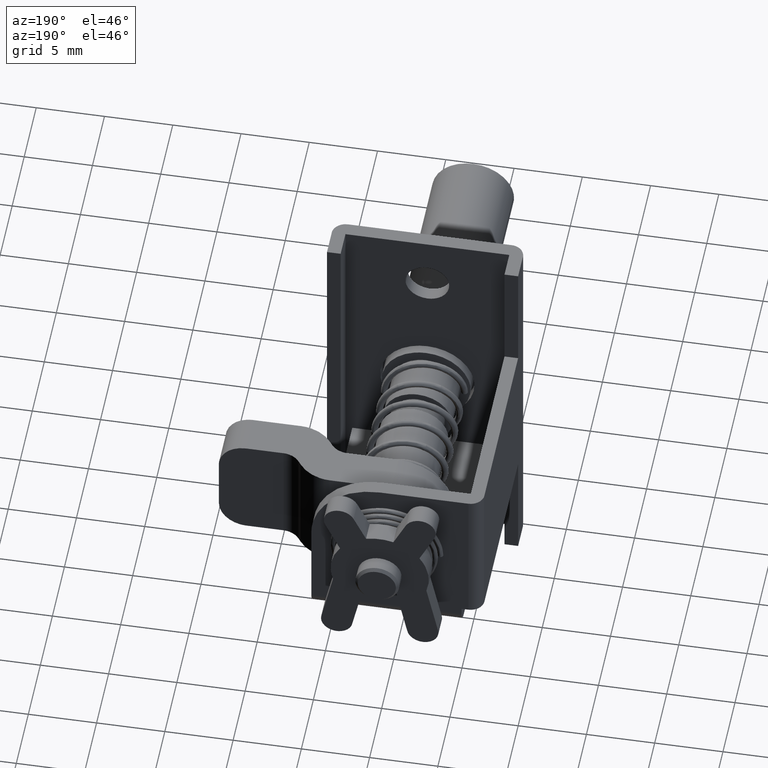
[diagram: clean part render]
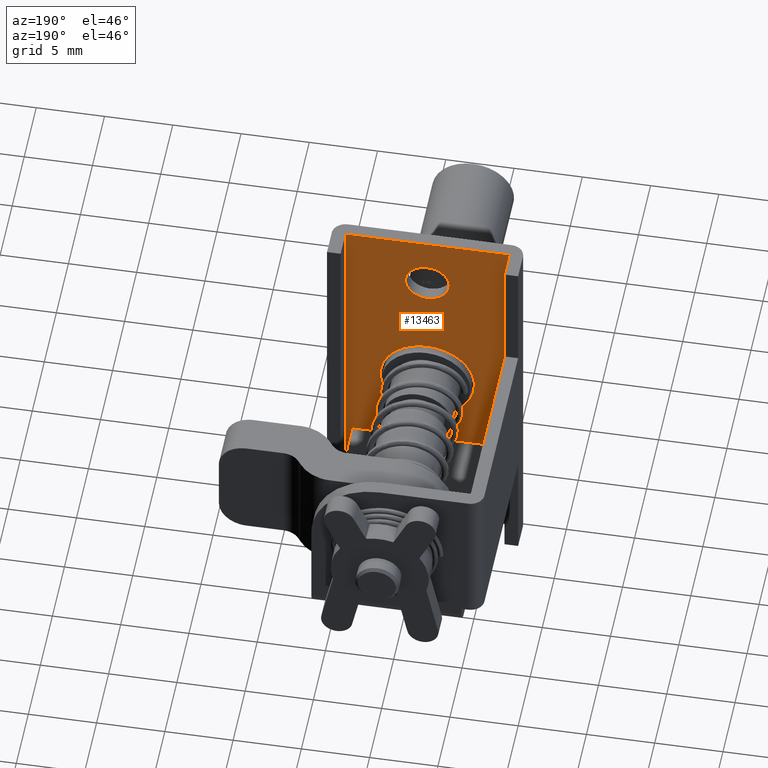
[diagram: same view with one face highlighted and labeled with its STEP entity id]
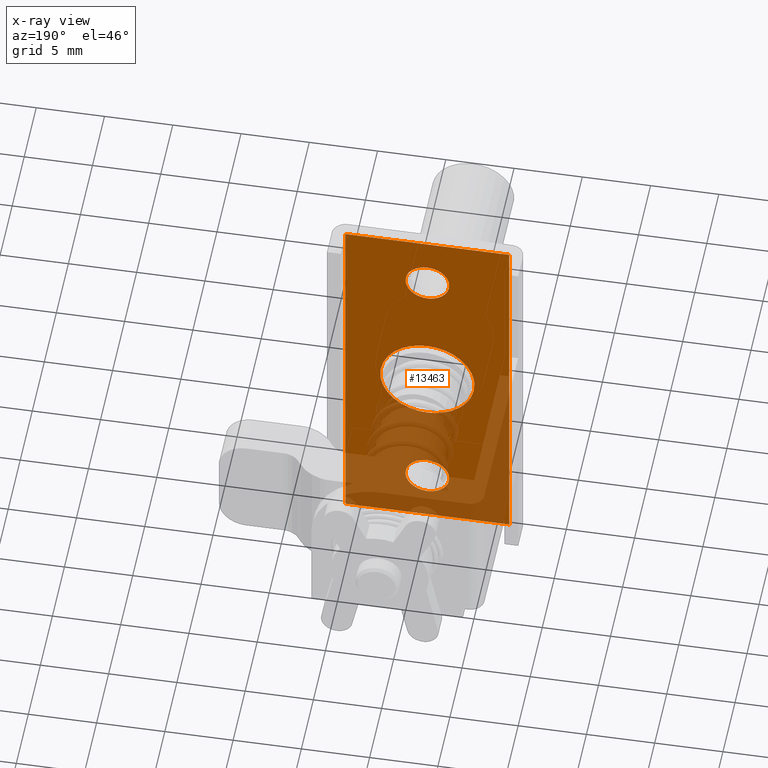
[diagram: x-ray of the same camera — body ghosted, the highlighted face saturated]
A machine part, auxiliary view. The second image highlights one B-rep face of the part: STEP entity #13463.
The next image is the same camera in x-ray: the body ghosted, the highlighted face saturated — about 36% of this face is hidden behind the body in this view.
In plain terms, the highlighted face is a freeform B-spline surface patch.
Its self-contained STEP definition (entity closure, byte-faithful):
#12119=CARTESIAN_POINT('',(1.0,3.443565165598701,0.210615106080822));
#12120=VERTEX_POINT('',#12119);
#12126=CARTESIAN_POINT('',(1.0,0.0,3.449999460242545));
#12127=VERTEX_POINT('',#12126);
#12128=CARTESIAN_POINT('',(1.0,0.0,3.449999460242545));
#12129=CARTESIAN_POINT('',(1.0,3.245437645119528,3.449999460242545));
#12130=CARTESIAN_POINT('',(1.0,3.443565165598701,0.210615106080822));
#12138=(BOUNDED_CURVE()B_SPLINE_CURVE(2,(#12128,#12129,#12130),.UNSPECIFIED.,.F.,.U.)B_SPLINE_CURVE_WITH_KNOTS((3,3),(0.500000000000000,0.739333053214128),.UNSPECIFIED.)CURVE()GEOMETRIC_REPRESENTATION_ITEM()RATIONAL_B_SPLINE_CURVE((1.0,0.719603886702651,0.976072236643935))REPRESENTATION_ITEM(''));
#12139=EDGE_CURVE('',#12127,#12120,#12138,.T.);
#12141=CARTESIAN_POINT('',(1.0,-3.425882865950638,-0.407218649357019));
#12142=VERTEX_POINT('',#12141);
#12143=CARTESIAN_POINT('',(1.0,-3.425882865950638,-0.407218649357019));
#12144=CARTESIAN_POINT('',(1.0,-3.449999999999999,-0.204323752590649));
#12145=CARTESIAN_POINT('',(1.0,-3.450000000000000,-0.000000539757455));
#12146=CARTESIAN_POINT('',(1.0,-3.450000000000000,3.449999460242546));
#12147=CARTESIAN_POINT('',(1.0,0.0,3.449999460242545));
#12155=(BOUNDED_CURVE()B_SPLINE_CURVE(2,(#12143,#12144,#12145,#12146,#12147),.UNSPECIFIED.,.F.,.U.)B_SPLINE_CURVE_WITH_KNOTS((3,2,3),(0.229562473512315,0.250000000000000,0.500000000000000),.UNSPECIFIED.)CURVE()GEOMETRIC_REPRESENTATION_ITEM()RATIONAL_B_SPLINE_CURVE((0.956026754181360,0.976055948329747,1.0,0.707106781186548,1.0))REPRESENTATION_ITEM(''));
#12156=EDGE_CURVE('',#12142,#12127,#12155,.T.);
#12200=CARTESIAN_POINT('',(1.0,0.0,-3.450000539757455));
#12201=VERTEX_POINT('',#12200);
#12202=CARTESIAN_POINT('',(1.0,0.0,-3.450000539757455));
#12203=CARTESIAN_POINT('',(1.0,-3.064202114471426,-3.450000539757455));
#12204=CARTESIAN_POINT('',(1.0,-3.425882865950638,-0.407218649357019));
#12212=(BOUNDED_CURVE()B_SPLINE_CURVE(2,(#12202,#12203,#12204),.UNSPECIFIED.,.F.,.U.)B_SPLINE_CURVE_WITH_KNOTS((3,3),(0.0,0.229562473512315),.UNSPECIFIED.)CURVE()GEOMETRIC_REPRESENTATION_ITEM()RATIONAL_B_SPLINE_CURVE((1.0,0.731050832856801,0.956026754181360))REPRESENTATION_ITEM(''));
#12213=EDGE_CURVE('',#12201,#12142,#12212,.T.);
#12215=CARTESIAN_POINT('',(1.0,3.443565165598701,0.210615106080822));
#12216=CARTESIAN_POINT('',(1.0,3.449999999999999,0.105405583298902));
#12217=CARTESIAN_POINT('',(1.0,3.450000000000000,-0.000000539757455));
#12218=CARTESIAN_POINT('',(1.0,3.450000000000000,-3.450000539757455));
#12219=CARTESIAN_POINT('',(1.0,0.0,-3.450000539757455));
#12227=(BOUNDED_CURVE()B_SPLINE_CURVE(2,(#12215,#12216,#12217,#12218,#12219),.UNSPECIFIED.,.F.,.U.)B_SPLINE_CURVE_WITH_KNOTS((3,2,3),(0.739333053214128,0.750000000000000,1.0),.UNSPECIFIED.)CURVE()GEOMETRIC_REPRESENTATION_ITEM()RATIONAL_B_SPLINE_CURVE((0.976072236643935,0.987502894483896,1.0,0.707106781186548,1.0))REPRESENTATION_ITEM(''));
#12228=EDGE_CURVE('',#12120,#12201,#12227,.T.);
#12305=CARTESIAN_POINT('',(1.0,1.597015677469012,10.097677941110160));
#12306=VERTEX_POINT('',#12305);
#12312=CARTESIAN_POINT('',(1.0,0.0,11.600000277756701));
#12313=VERTEX_POINT('',#12312);
#12314=CARTESIAN_POINT('',(1.0,0.0,11.600000277756701));
#12315=CARTESIAN_POINT('',(1.0,1.505129706864636,11.600000277756699));
#12316=CARTESIAN_POINT('',(1.0,1.597015677469012,10.097677941110156));
#12324=(BOUNDED_CURVE()B_SPLINE_CURVE(2,(#12314,#12315,#12316),.UNSPECIFIED.,.F.,.U.)B_SPLINE_CURVE_WITH_KNOTS((3,3),(0.500000000000000,0.739332962220860),.UNSPECIFIED.)CURVE()GEOMETRIC_REPRESENTATION_ITEM()RATIONAL_B_SPLINE_CURVE((1.0,0.719603993307896,0.976072041627962))REPRESENTATION_ITEM(''));
#12325=EDGE_CURVE('',#12313,#12306,#12324,.T.);
#12327=CARTESIAN_POINT('',(1.0,-1.588815242175829,9.811145502255096));
#12328=VERTEX_POINT('',#12327);
#12329=CARTESIAN_POINT('',(1.0,-1.588815242175829,9.811145502255096));
#12330=CARTESIAN_POINT('',(1.0,-1.600000000000001,9.905241686262317));
#12331=CARTESIAN_POINT('',(1.0,-1.600000000000000,10.000000277756699));
#12332=CARTESIAN_POINT('',(1.0,-1.600000000000000,11.600000277756697));
#12333=CARTESIAN_POINT('',(1.0,0.0,11.600000277756701));
#12341=(BOUNDED_CURVE()B_SPLINE_CURVE(2,(#12329,#12330,#12331,#12332,#12333),.UNSPECIFIED.,.F.,.U.)B_SPLINE_CURVE_WITH_KNOTS((3,2,3),(0.229562473504839,0.250000000000000,0.500000000000000),.UNSPECIFIED.)CURVE()GEOMETRIC_REPRESENTATION_ITEM()RATIONAL_B_SPLINE_CURVE((0.956026754166707,0.976055948320988,1.0,0.707106781186548,1.0))REPRESENTATION_ITEM(''));
#12342=EDGE_CURVE('',#12328,#12313,#12341,.T.);
#12386=CARTESIAN_POINT('',(1.0,0.0,8.400000277756700));
#12387=VERTEX_POINT('',#12386);
#12388=CARTESIAN_POINT('',(1.0,0.0,8.400000277756700));
#12389=CARTESIAN_POINT('',(1.0,-1.421079241430693,8.400000277756702));
#12390=CARTESIAN_POINT('',(1.0,-1.588815242175830,9.811145502255096));
#12398=(BOUNDED_CURVE()B_SPLINE_CURVE(2,(#12388,#12389,#12390),.UNSPECIFIED.,.F.,.U.)B_SPLINE_CURVE_WITH_KNOTS((3,3),(0.0,0.229562473504839),.UNSPECIFIED.)CURVE()GEOMETRIC_REPRESENTATION_ITEM()RATIONAL_B_SPLINE_CURVE((1.0,0.731050832865559,0.956026754166707))REPRESENTATION_ITEM(''));
#12399=EDGE_CURVE('',#12387,#12328,#12398,.T.);
#12401=CARTESIAN_POINT('',(1.0,1.597015677469013,10.097677941110156));
#12402=CARTESIAN_POINT('',(1.0,1.600000000000000,10.048884699132403));
#12403=CARTESIAN_POINT('',(1.0,1.600000000000000,10.000000277756699));
#12404=CARTESIAN_POINT('',(1.0,1.600000000000000,8.400000277756702));
#12405=CARTESIAN_POINT('',(1.0,0.0,8.400000277756700));
#12413=(BOUNDED_CURVE()B_SPLINE_CURVE(2,(#12401,#12402,#12403,#12404,#12405),.UNSPECIFIED.,.F.,.U.)B_SPLINE_CURVE_WITH_KNOTS((3,2,3),(0.739332962220860,0.750000000000000,1.0),.UNSPECIFIED.)CURVE()GEOMETRIC_REPRESENTATION_ITEM()RATIONAL_B_SPLINE_CURVE((0.976072041627963,0.987502787878652,1.0,0.707106781186548,1.0))REPRESENTATION_ITEM(''));
#12414=EDGE_CURVE('',#12306,#12387,#12413,.T.);
#12491=CARTESIAN_POINT('',(1.0,-1.597015677469012,-10.097677385596869));
#12492=VERTEX_POINT('',#12491);
#12498=CARTESIAN_POINT('',(1.0,0.0,-11.599999722243419));
#12499=VERTEX_POINT('',#12498);
#12500=CARTESIAN_POINT('',(1.0,0.0,-11.599999722243419));
#12501=CARTESIAN_POINT('',(1.0,-1.505129706864636,-11.599999722243423));
#12502=CARTESIAN_POINT('',(1.0,-1.597015677469012,-10.097677385596874));
#12510=(BOUNDED_CURVE()B_SPLINE_CURVE(2,(#12500,#12501,#12502),.UNSPECIFIED.,.F.,.U.)B_SPLINE_CURVE_WITH_KNOTS((3,3),(0.500000000000000,0.739332962220860),.UNSPECIFIED.)CURVE()GEOMETRIC_REPRESENTATION_ITEM()RATIONAL_B_SPLINE_CURVE((1.0,0.719603993307896,0.976072041627962))REPRESENTATION_ITEM(''));
#12511=EDGE_CURVE('',#12499,#12492,#12510,.T.);
#12513=CARTESIAN_POINT('',(1.0,1.588815242175829,-9.811144946741816));
#12514=VERTEX_POINT('',#12513);
#12515=CARTESIAN_POINT('',(1.0,1.588815242175830,-9.811144946741816));
#12516=CARTESIAN_POINT('',(1.0,1.599999999999999,-9.905241130749035));
#12517=CARTESIAN_POINT('',(1.0,1.600000000000000,-9.999999722243420));
#12518=CARTESIAN_POINT('',(1.0,1.600000000000000,-11.599999722243423));
#12519=CARTESIAN_POINT('',(1.0,0.0,-11.599999722243419));
#12527=(BOUNDED_CURVE()B_SPLINE_CURVE(2,(#12515,#12516,#12517,#12518,#12519),.UNSPECIFIED.,.F.,.U.)B_SPLINE_CURVE_WITH_KNOTS((3,2,3),(0.229562473504839,0.250000000000000,0.500000000000000),.UNSPECIFIED.)CURVE()GEOMETRIC_REPRESENTATION_ITEM()RATIONAL_B_SPLINE_CURVE((0.956026754166707,0.976055948320988,1.0,0.707106781186548,1.0))REPRESENTATION_ITEM(''));
#12528=EDGE_CURVE('',#12514,#12499,#12527,.T.);
#12572=CARTESIAN_POINT('',(1.0,0.0,-8.399999722243420));
#12573=VERTEX_POINT('',#12572);
#12574=CARTESIAN_POINT('',(1.0,0.0,-8.399999722243420));
#12575=CARTESIAN_POINT('',(1.0,1.421079241430693,-8.399999722243420));
#12576=CARTESIAN_POINT('',(1.0,1.588815242175830,-9.811144946741816));
#12584=(BOUNDED_CURVE()B_SPLINE_CURVE(2,(#12574,#12575,#12576),.UNSPECIFIED.,.F.,.U.)B_SPLINE_CURVE_WITH_KNOTS((3,3),(0.0,0.229562473504839),.UNSPECIFIED.)CURVE()GEOMETRIC_REPRESENTATION_ITEM()RATIONAL_B_SPLINE_CURVE((1.0,0.731050832865559,0.956026754166707))REPRESENTATION_ITEM(''));
#12585=EDGE_CURVE('',#12573,#12514,#12584,.T.);
#12587=CARTESIAN_POINT('',(1.0,-1.597015677469012,-10.097677385596874));
#12588=CARTESIAN_POINT('',(1.0,-1.600000000000000,-10.048884143619119));
#12589=CARTESIAN_POINT('',(1.0,-1.600000000000000,-9.999999722243420));
#12590=CARTESIAN_POINT('',(1.0,-1.600000000000000,-8.399999722243420));
#12591=CARTESIAN_POINT('',(1.0,0.0,-8.399999722243420));
#12599=(BOUNDED_CURVE()B_SPLINE_CURVE(2,(#12587,#12588,#12589,#12590,#12591),.UNSPECIFIED.,.F.,.U.)B_SPLINE_CURVE_WITH_KNOTS((3,2,3),(0.739332962220860,0.750000000000000,1.0),.UNSPECIFIED.)CURVE()GEOMETRIC_REPRESENTATION_ITEM()RATIONAL_B_SPLINE_CURVE((0.976072041627963,0.987502787878652,1.0,0.707106781186548,1.0))REPRESENTATION_ITEM(''));
#12600=EDGE_CURVE('',#12492,#12573,#12599,.T.);
#12993=CARTESIAN_POINT('',(1.0,-6.0,14.000000277756600));
#12994=VERTEX_POINT('',#12993);
#13000=CARTESIAN_POINT('',(1.0,6.0,14.000000277756600));
#13001=VERTEX_POINT('',#13000);
#13002=CARTESIAN_POINT('',(1.0,-6.0,14.000000277756600));
#13003=CARTESIAN_POINT('',(1.0,6.0,14.000000277756600));
#13004=QUASI_UNIFORM_CURVE('',1,(#13002,#13003),.UNSPECIFIED.,.F.,.U.);
#13005=EDGE_CURVE('',#12994,#13001,#13004,.T.);
#13222=CARTESIAN_POINT('',(1.0,6.0,-13.999999722243301));
#13223=VERTEX_POINT('',#13222);
#13224=CARTESIAN_POINT('',(1.0,6.0,-13.999999722243301));
#13225=CARTESIAN_POINT('',(1.0,6.0,14.000000277756600));
#13226=QUASI_UNIFORM_CURVE('',1,(#13224,#13225),.UNSPECIFIED.,.F.,.U.);
#13227=EDGE_CURVE('',#13223,#13001,#13226,.T.);
#13279=CARTESIAN_POINT('',(1.0,-6.0,-13.999999722243301));
#13280=VERTEX_POINT('',#13279);
#13286=CARTESIAN_POINT('',(1.0,-6.0,-13.999999722243301));
#13287=CARTESIAN_POINT('',(1.0,-6.0,14.000000277756600));
#13288=QUASI_UNIFORM_CURVE('',1,(#13286,#13287),.UNSPECIFIED.,.F.,.U.);
#13289=EDGE_CURVE('',#13280,#12994,#13288,.T.);
#13430=CARTESIAN_POINT('',(1.0,-6.599399976741672,-15.398599930817831));
#13431=CARTESIAN_POINT('',(1.0,6.599400298606753,-15.398599930817831));
#13432=CARTESIAN_POINT('',(1.0,-6.599399976741672,15.398600987010150));
#13433=CARTESIAN_POINT('',(1.0,6.599400298606753,15.398600987010150));
#13434=B_SPLINE_SURFACE_WITH_KNOTS('',1,1,((#13430,#13432),(#13431,#13433)),.UNSPECIFIED.,.F.,.F.,.U.,(2,2),(2,2),(0.0,13.198800275348431),(0.0,30.797200917827979),.UNSPECIFIED.);
#13435=CARTESIAN_POINT('',(1.0,-6.0,-13.999999722243301));
#13436=CARTESIAN_POINT('',(1.0,6.0,-13.999999722243301));
#13437=QUASI_UNIFORM_CURVE('',1,(#13435,#13436),.UNSPECIFIED.,.F.,.U.);
#13438=EDGE_CURVE('',#13280,#13223,#13437,.T.);
#13439=ORIENTED_EDGE('',*,*,#13438,.T.);
#13440=ORIENTED_EDGE('',*,*,#13227,.T.);
#13441=ORIENTED_EDGE('',*,*,#13005,.F.);
#13442=ORIENTED_EDGE('',*,*,#13289,.F.);
#13443=EDGE_LOOP('',(#13439,#13440,#13441,#13442));
#13444=FACE_OUTER_BOUND('',#13443,.T.);
#13445=ORIENTED_EDGE('',*,*,#12511,.T.);
#13446=ORIENTED_EDGE('',*,*,#12600,.T.);
#13447=ORIENTED_EDGE('',*,*,#12585,.T.);
#13448=ORIENTED_EDGE('',*,*,#12528,.T.);
#13449=EDGE_LOOP('',(#13445,#13446,#13447,#13448));
#13450=FACE_BOUND('',#13449,.T.);
#13451=ORIENTED_EDGE('',*,*,#12325,.T.);
#13452=ORIENTED_EDGE('',*,*,#12414,.T.);
#13453=ORIENTED_EDGE('',*,*,#12399,.T.);
#13454=ORIENTED_EDGE('',*,*,#12342,.T.);
#13455=EDGE_LOOP('',(#13451,#13452,#13453,#13454));
#13456=FACE_BOUND('',#13455,.T.);
#13457=ORIENTED_EDGE('',*,*,#12139,.T.);
#13458=ORIENTED_EDGE('',*,*,#12228,.T.);
#13459=ORIENTED_EDGE('',*,*,#12213,.T.);
#13460=ORIENTED_EDGE('',*,*,#12156,.T.);
#13461=EDGE_LOOP('',(#13457,#13458,#13459,#13460));
#13462=FACE_BOUND('',#13461,.T.);
#13463=ADVANCED_FACE('',(#13444,#13450,#13456,#13462),#13434,.T.);